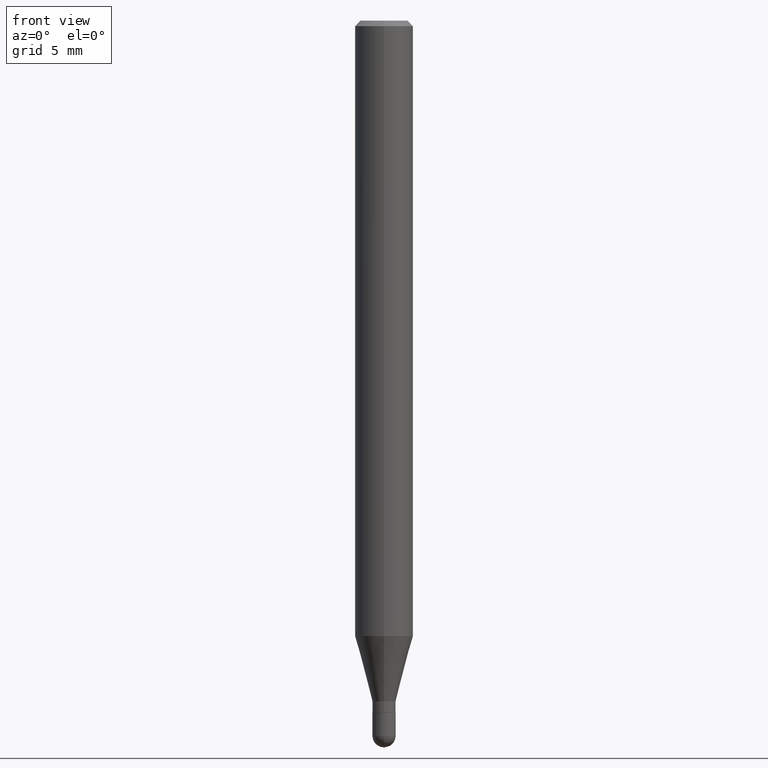
[diagram: clean part render]
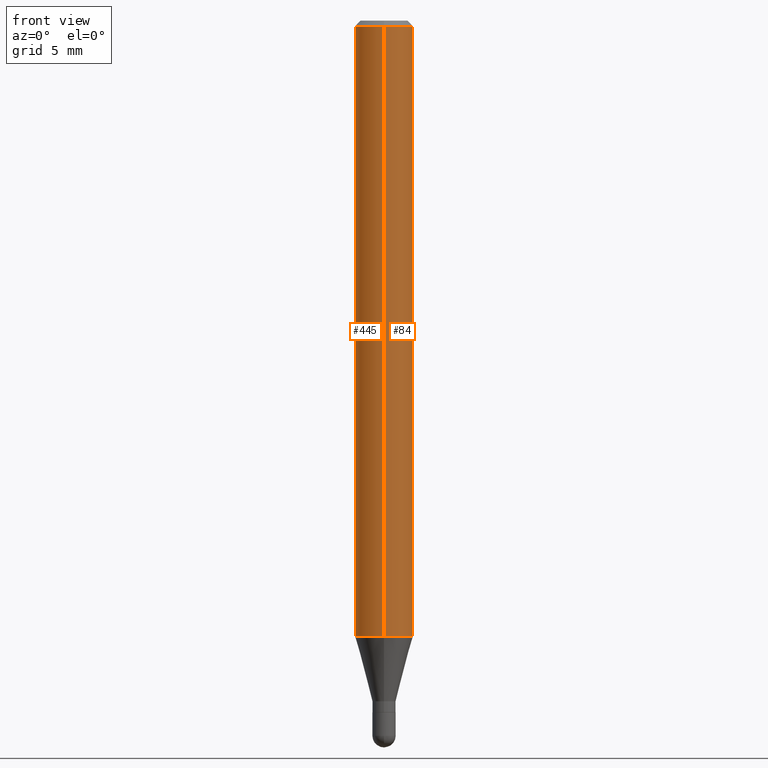
[diagram: same view with one multi-face feature highlighted, each face labeled with its STEP entity id]
A machine part, front view. The highlighted faces form ONE feature: a constant-radius fillet chain: 2 tangent blend faces with common blend radius 2.0002 mm. The faces share edges in the B-rep.
Their STEP definitions:
[1] entity #84 (Cylinder):
#1 = EDGE_LOOP ( 'NONE', ( #271, #433, #100, #273 ) ) ;
#28 = VECTOR ( 'NONE', #204, 39.37007874015748143 ) ;
#74 = FACE_OUTER_BOUND ( 'NONE', #1, .T. ) ;
#84 = ADVANCED_FACE ( 'NONE', ( #74 ), #416, .T. ) ;
#100 = ORIENTED_EDGE ( 'NONE', *, *, #256, .F. ) ;
#102 = AXIS2_PLACEMENT_3D ( 'NONE', #178, #218, #299 ) ;
#108 = DIRECTION ( 'NONE',  ( -2.445482869780653605E-29, 3.491461198973915131E-15, 1.000000000000000000 ) ) ;
#110 = CARTESIAN_POINT ( 'NONE',  ( 5.595524044111199211E-16, 0.07874999999999994504, -0.01500000000000004108 ) ) ;
#122 = VECTOR ( 'NONE', #108, 39.37007874015748143 ) ;
#126 = EDGE_CURVE ( 'NONE', #229, #308, #260, .T. ) ;
#178 = CARTESIAN_POINT ( 'NONE',  ( 0.000000000000000000, 0.000000000000000000, 0.000000000000000000 ) ) ;
#183 = CARTESIAN_POINT ( 'NONE',  ( -5.499083108677528180E-16, -0.07875000000000582923, -1.667160599342370819 ) ) ;
#186 = DIRECTION ( 'NONE',  ( -6.982962677686264344E-15, -1.000000000000000000, 3.496114991891765576E-15 ) ) ;
#204 = DIRECTION ( 'NONE',  ( -2.445482869780653605E-29, 3.491461198973915131E-15, 1.000000000000000000 ) ) ;
#205 = EDGE_CURVE ( 'NONE', #308, #233, #500, .T. ) ;
#218 = DIRECTION ( 'NONE',  ( -2.445482869780653605E-29, 3.491461198973915131E-15, 1.000000000000000000 ) ) ;
#229 = VERTEX_POINT ( 'NONE', #183 ) ;
#233 = VERTEX_POINT ( 'NONE', #110 ) ;
#238 = CARTESIAN_POINT ( 'NONE',  ( -5.499083108677933457E-16, -0.07875000000000000056, 2.749525694191958254E-16 ) ) ;
#256 = EDGE_CURVE ( 'NONE', #478, #233, #326, .T. ) ;
#260 = CIRCLE ( 'NONE', #265, 0.07875000000000000056 ) ;
#265 = AXIS2_PLACEMENT_3D ( 'NONE', #351, #462, #494 ) ;
#271 = ORIENTED_EDGE ( 'NONE', *, *, #126, .T. ) ;
#273 = ORIENTED_EDGE ( 'NONE', *, *, #378, .F. ) ;
#299 = DIRECTION ( 'NONE',  ( -6.982962677686264344E-15, -1.000000000000000000, 3.491461198973915131E-15 ) ) ;
#308 = VERTEX_POINT ( 'NONE', #321 ) ;
#309 = CARTESIAN_POINT ( 'NONE',  ( 5.595524044110787031E-16, 0.07875000000000000056, -2.749525694191958254E-16 ) ) ;
#321 = CARTESIAN_POINT ( 'NONE',  ( 5.595524044111192308E-16, 0.07874999999999415801, -1.667160599342371263 ) ) ;
#326 = CIRCLE ( 'NONE', #495, 0.07875000000000000056 ) ;
#330 = CARTESIAN_POINT ( 'NONE',  ( -5.499083108677930499E-16, -0.07875000000000004219, -0.01499999999999948944 ) ) ;
#343 = DIRECTION ( 'NONE',  ( -2.445482869780653605E-29, 3.491461198973915131E-15, 1.000000000000000000 ) ) ;
#346 = CARTESIAN_POINT ( 'NONE',  ( 3.668224304670922481E-31, -5.237191798460791690E-17, -0.01499999999999976526 ) ) ;
#351 = CARTESIAN_POINT ( 'NONE',  ( 4.077012686865015865E-29, -5.820826545061986514E-15, -1.667160599342371041 ) ) ;
#378 = EDGE_CURVE ( 'NONE', #229, #478, #479, .T. ) ;
#416 = CYLINDRICAL_SURFACE ( 'NONE', #102, 0.07875000000000000056 ) ;
#433 = ORIENTED_EDGE ( 'NONE', *, *, #205, .T. ) ;
#462 = DIRECTION ( 'NONE',  ( -2.445482869780653605E-29, 3.491461198973915131E-15, 1.000000000000000000 ) ) ;
#478 = VERTEX_POINT ( 'NONE', #330 ) ;
#479 = LINE ( 'NONE', #238, #28 ) ;
#494 = DIRECTION ( 'NONE',  ( -6.982962677686264344E-15, -1.000000000000000000, 3.469013325287953293E-15 ) ) ;
#495 = AXIS2_PLACEMENT_3D ( 'NONE', #346, #343, #186 ) ;
#500 = LINE ( 'NONE', #309, #122 ) ;
[2] entity #445 (Cylinder):
#2 = CARTESIAN_POINT ( 'NONE',  ( 3.668224304670922481E-31, -5.237191798460791690E-17, -0.01499999999999976526 ) ) ;
#26 = EDGE_LOOP ( 'NONE', ( #269, #357, #127, #355 ) ) ;
#27 = DIRECTION ( 'NONE',  ( -6.982962677686264344E-15, -1.000000000000000000, 3.469013325287953293E-15 ) ) ;
#28 = VECTOR ( 'NONE', #204, 39.37007874015748143 ) ;
#53 = AXIS2_PLACEMENT_3D ( 'NONE', #160, #400, #131 ) ;
#90 = DIRECTION ( 'NONE',  ( -2.445482869780653605E-29, 3.491461198973915131E-15, 1.000000000000000000 ) ) ;
#108 = DIRECTION ( 'NONE',  ( -2.445482869780653605E-29, 3.491461198973915131E-15, 1.000000000000000000 ) ) ;
#109 = EDGE_CURVE ( 'NONE', #308, #229, #370, .T. ) ;
#110 = CARTESIAN_POINT ( 'NONE',  ( 5.595524044111199211E-16, 0.07874999999999994504, -0.01500000000000004108 ) ) ;
#122 = VECTOR ( 'NONE', #108, 39.37007874015748143 ) ;
#127 = ORIENTED_EDGE ( 'NONE', *, *, #378, .T. ) ;
#131 = DIRECTION ( 'NONE',  ( -6.982962677686264344E-15, -1.000000000000000000, 3.491461198973915131E-15 ) ) ;
#158 = CYLINDRICAL_SURFACE ( 'NONE', #53, 0.07875000000000000056 ) ;
#160 = CARTESIAN_POINT ( 'NONE',  ( 0.000000000000000000, 0.000000000000000000, 0.000000000000000000 ) ) ;
#183 = CARTESIAN_POINT ( 'NONE',  ( -5.499083108677528180E-16, -0.07875000000000582923, -1.667160599342370819 ) ) ;
#189 = AXIS2_PLACEMENT_3D ( 'NONE', #385, #262, #27 ) ;
#204 = DIRECTION ( 'NONE',  ( -2.445482869780653605E-29, 3.491461198973915131E-15, 1.000000000000000000 ) ) ;
#205 = EDGE_CURVE ( 'NONE', #308, #233, #500, .T. ) ;
#229 = VERTEX_POINT ( 'NONE', #183 ) ;
#233 = VERTEX_POINT ( 'NONE', #110 ) ;
#238 = CARTESIAN_POINT ( 'NONE',  ( -5.499083108677933457E-16, -0.07875000000000000056, 2.749525694191958254E-16 ) ) ;
#262 = DIRECTION ( 'NONE',  ( -2.445482869780653605E-29, 3.491461198973915131E-15, 1.000000000000000000 ) ) ;
#269 = ORIENTED_EDGE ( 'NONE', *, *, #205, .F. ) ;
#295 = AXIS2_PLACEMENT_3D ( 'NONE', #2, #90, #468 ) ;
#308 = VERTEX_POINT ( 'NONE', #321 ) ;
#309 = CARTESIAN_POINT ( 'NONE',  ( 5.595524044110787031E-16, 0.07875000000000000056, -2.749525694191958254E-16 ) ) ;
#321 = CARTESIAN_POINT ( 'NONE',  ( 5.595524044111192308E-16, 0.07874999999999415801, -1.667160599342371263 ) ) ;
#330 = CARTESIAN_POINT ( 'NONE',  ( -5.499083108677930499E-16, -0.07875000000000004219, -0.01499999999999948944 ) ) ;
#354 = FACE_OUTER_BOUND ( 'NONE', #26, .T. ) ;
#355 = ORIENTED_EDGE ( 'NONE', *, *, #364, .F. ) ;
#357 = ORIENTED_EDGE ( 'NONE', *, *, #109, .T. ) ;
#364 = EDGE_CURVE ( 'NONE', #233, #478, #451, .T. ) ;
#370 = CIRCLE ( 'NONE', #189, 0.07875000000000000056 ) ;
#378 = EDGE_CURVE ( 'NONE', #229, #478, #479, .T. ) ;
#385 = CARTESIAN_POINT ( 'NONE',  ( 4.077012686865015865E-29, -5.820826545061986514E-15, -1.667160599342371041 ) ) ;
#400 = DIRECTION ( 'NONE',  ( -2.445482869780653605E-29, 3.491461198973915131E-15, 1.000000000000000000 ) ) ;
#445 = ADVANCED_FACE ( 'NONE', ( #354 ), #158, .T. ) ;
#451 = CIRCLE ( 'NONE', #295, 0.07875000000000000056 ) ;
#468 = DIRECTION ( 'NONE',  ( -6.982962677686264344E-15, -1.000000000000000000, 3.496114991891765576E-15 ) ) ;
#478 = VERTEX_POINT ( 'NONE', #330 ) ;
#479 = LINE ( 'NONE', #238, #28 ) ;
#500 = LINE ( 'NONE', #309, #122 ) ;